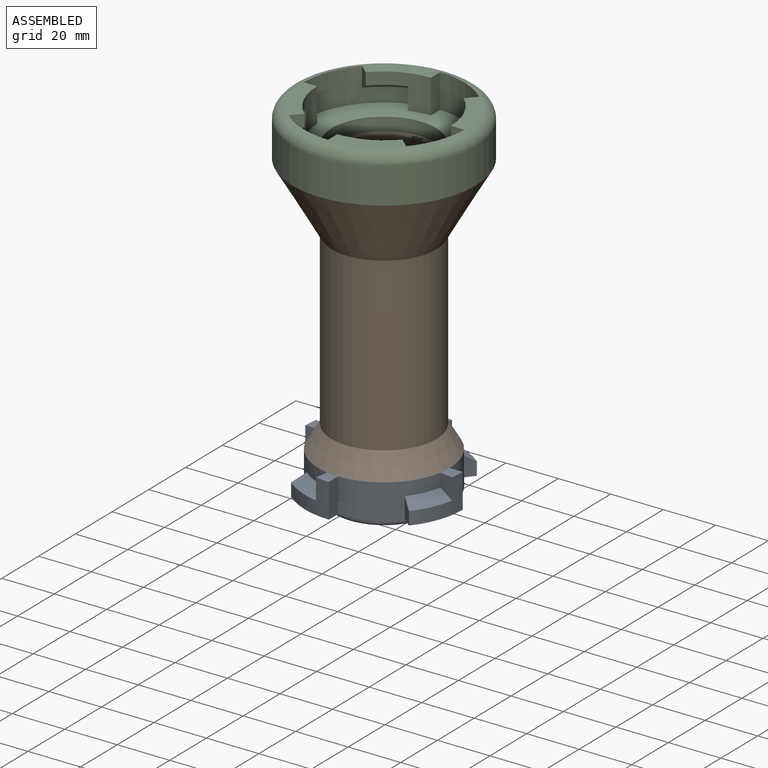
[diagram: assembled view]
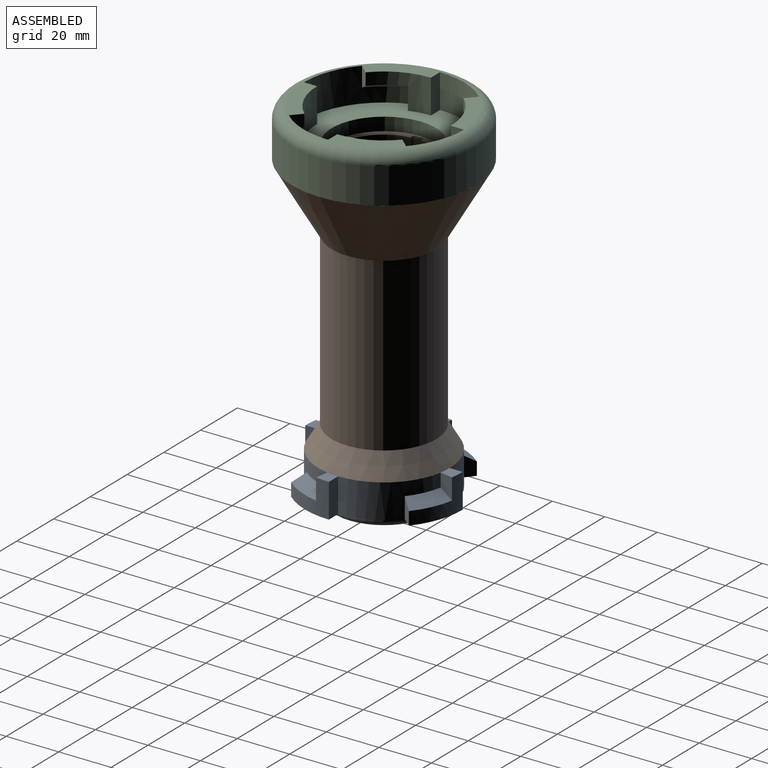
[diagram: assembled view, second angle]
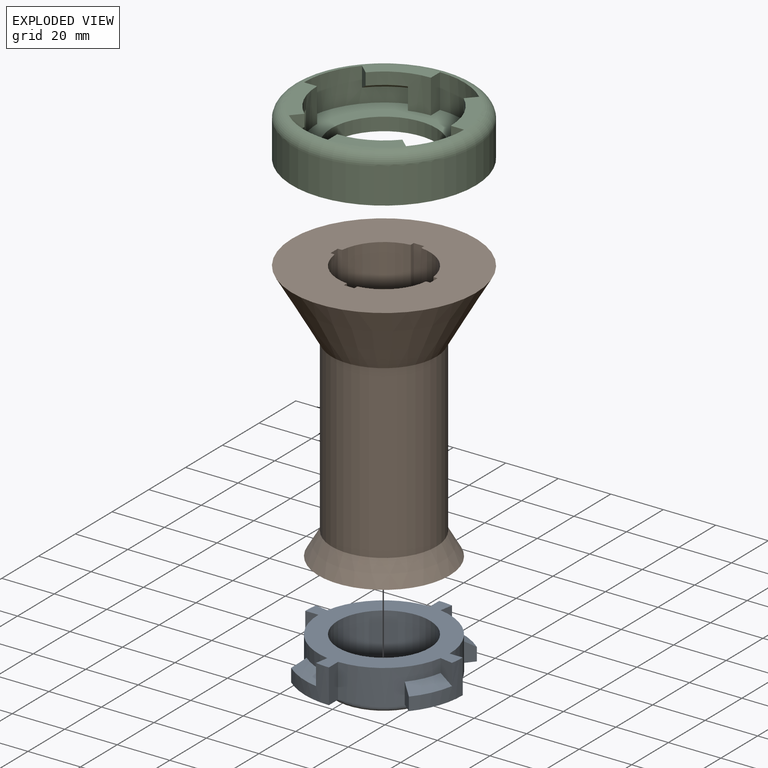
[diagram: exploded view]
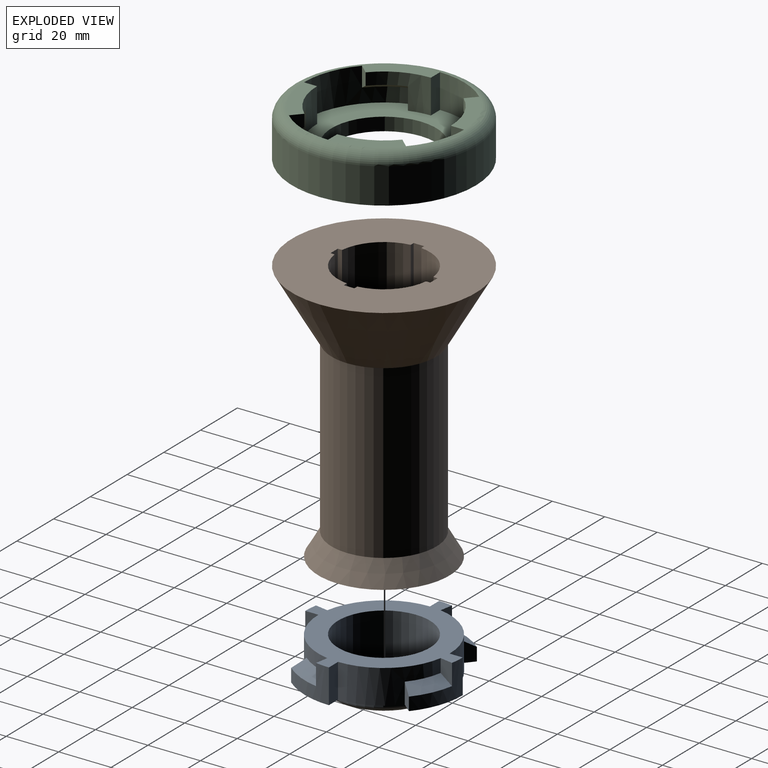
[diagram: exploded view, second angle]
ASSEMBLY  parts=3 mates=2
PART A: 29 faces, bbox 60x60x18 mm
  f0: cylinder r=30mm len=19.28mm, axis (0,0,-1), area 146.6mm2, adj f6,f11,f15,f20,f21,f27
  f1: cylinder r=30mm len=19.28mm, axis (0,0,-1), area 146.6mm2, adj f4,f11,f15,f22,f23,f26
  f2: cylinder r=30mm len=19.28mm, axis (0,0,-1), area 146.6mm2, adj f11,f13,f15,f16,f17,f24
  f3: cylinder r=25mm len=24.62mm, axis (0,0,-1), area 350.5mm2, adj f11,f13,f15,f17,f22,f24
  f4: cone r=30mm half-angle=60deg, axis (0,0,-1), area 83.1mm2, adj f1,f5,f23,f26
  f5: cylinder r=25mm len=24.62mm, axis (0,0,-1), area 350.5mm2, adj f4,f11,f15,f20,f23,f26
  f6: cone r=30mm half-angle=60deg, axis (0,0,-1), area 83.1mm2, adj f0,f8,f21,f27
  f7: cone r=30mm half-angle=60deg, axis (0,0,-1), area 83.1mm2, adj f12,f14,f19,f25
  f8: cylinder r=25mm len=24.62mm, axis (0,0,-1), area 350.5mm2, adj f6,f11,f15,f18,f21,f27
  f9: cylinder r=17.5mm len=35mm, axis (0,0,-1), area 1979.2mm2, adj f15,f28
  f10: cylinder r=19.5mm len=39mm, axis (0,0,-1), area 367.6mm2, adj f11,f28
  f11: plane 60x60mm, normal (0,0,-1), area 1152.9mm2, adj f0,f1,f2,f3,f5,f8,f10,f12
  f12: cylinder r=30mm len=19.28mm, axis (0,0,-1), area 146.6mm2, adj f7,f11,f15,f18,f19,f25
  f13: cone r=30mm half-angle=60deg, axis (0,0,-1), area 83.1mm2, adj f2,f3,f17,f24
  f14: cylinder r=25mm len=24.62mm, axis (0,0,-1), area 350.5mm2, adj f7,f11,f15,f16,f19,f25
  f15: plane 60x60mm, normal (0,0,1), area 1097.4mm2, adj f0,f1,f2,f3,f5,f8,f9,f12
  f16: plane 13x5mm, normal (1,0,0), area 65mm2, adj f2,f11,f14,f15
  f17: plane 8x4.92mm, normal (-0.98,0.17,0), area 32.8mm2, adj f2,f3,f13,f15
  f18: plane 13x5mm, normal (0,1,0), area 65mm2, adj f8,f11,f12,f15
  f19: plane 8x4.92mm, normal (-0.17,-0.98,0), area 32.8mm2, adj f7,f12,f14,f15
  f20: plane 13x5mm, normal (-1,0,0), area 65mm2, adj f0,f5,f11,f15
  f21: plane 8x4.92mm, normal (0.98,-0.17,0), area 32.8mm2, adj f0,f6,f8,f15
  f22: plane 13x5mm, normal (0,-1,0), area 65mm2, adj f1,f3,f11,f15
  f23: plane 8x4.92mm, normal (0.17,0.98,0), area 32.8mm2, adj f1,f4,f5,f15
  f24: plane 7.89x3.83mm, normal (-0.77,0.64,0), area 32.2mm2, adj f2,f3,f11,f13
  f25: plane 7.89x3.83mm, normal (-0.64,-0.77,0), area 32.2mm2, adj f7,f11,f12,f14
  f26: plane 7.89x3.83mm, normal (0.64,0.77,0), area 32.2mm2, adj f1,f4,f5,f11
  f27: plane 7.89x3.83mm, normal (0.77,-0.64,0), area 32.2mm2, adj f0,f6,f8,f11
  f28: torus R=17.5mm, axis (0,0,-1), area 370.6mm2, adj f9,f10
PART B: 21 faces, bbox 70x70x100 mm
  f0: cylinder r=20mm len=65.36mm, axis (0,0,-1), area 8213.3mm2, adj f19,f20
  f1: cylinder r=17.5mm len=100mm, axis (0,0,-1), area 2348mm2, adj f2,f16,f17,f18
  f2: plane 100x1.61mm, normal (1,0,0), area 161.5mm2, adj f1,f3,f17,f18
  f3: plane 100x4mm, normal (0,-1,0), area 400mm2, adj f2,f4,f17,f18
  f4: plane 100x1.61mm, normal (-1,0,0), area 161.5mm2, adj f3,f5,f17,f18
  f5: cylinder r=17.5mm len=100mm, axis (0,0,-1), area 2348mm2, adj f4,f6,f17,f18
  f6: plane 100x1.61mm, normal (0,-1,0), area 161.5mm2, adj f5,f7,f17,f18
  f7: plane 100x4mm, normal (-1,0,0), area 400mm2, adj f6,f8,f17,f18
  f8: plane 100x1.61mm, normal (0,1,0), area 161.5mm2, adj f7,f9,f17,f18
  f9: cylinder r=17.5mm len=100mm, axis (0,0,-1), area 2348mm2, adj f8,f10,f17,f18
  f10: plane 100x1.61mm, normal (-1,0,0), area 161.5mm2, adj f9,f11,f17,f18
  f11: plane 100x4mm, normal (0,1,0), area 400mm2, adj f10,f12,f17,f18
  f12: plane 100x1.61mm, normal (1,0,0), area 161.5mm2, adj f11,f13,f17,f18
  f13: cylinder r=17.5mm len=100mm, axis (0,0,-1), area 2348mm2, adj f12,f14,f17,f18
  f14: plane 100x1.61mm, normal (0,1,0), area 161.5mm2, adj f13,f15,f17,f18
  f15: plane 100x4mm, normal (1,0,0), area 400mm2, adj f14,f16,f17,f18
  f16: plane 100x1.61mm, normal (0,-1,0), area 161.5mm2, adj f1,f15,f17,f18
  f17: plane 70x70mm, normal (0,0,1), area 2861.7mm2, adj f1,f2,f3,f4,f5,f6,f7,f8
  f18: plane 50x50mm, normal (0,0,-1), area 976.8mm2, adj f1,f2,f3,f4,f5,f6,f7,f8
  f19: cone r=20mm half-angle=30deg, axis (0,0,1), area 5183.6mm2, adj f0,f17
  f20: cone r=25mm half-angle=30deg, axis (0,0,-1), area 1413.7mm2, adj f0,f18
PART C: 33 faces, bbox 75.8x75.8x18 mm
  f0: plane 22.67x13.44mm, normal (0,0,1), area 117.3mm2, adj f12,f19,f27,f32
  f1: plane 22.67x13.44mm, normal (0,0,1), area 117.3mm2, adj f11,f22,f28,f32
  f2: plane 22.67x13.44mm, normal (0,0,1), area 117.3mm2, adj f10,f24,f29,f32
  f3: cylinder r=35mm len=70mm, axis (0,0,1), area 2968.8mm2, adj f31,f32
  f4: cone r=30.5mm half-angle=60deg, axis (0,0,-1), area 84.6mm2, adj f10,f13,f23,f29
  f5: cone r=30.5mm half-angle=60deg, axis (0,0,-1), area 84.6mm2, adj f11,f14,f21,f28
  f6: cone r=30.5mm half-angle=60deg, axis (0,0,-1), area 84.6mm2, adj f12,f15,f20,f27
  f7: cone r=30.5mm half-angle=60deg, axis (0,0,-1), area 84.6mm2, adj f9,f16,f25,f30
  f8: plane 22.67x13.44mm, normal (0,0,1), area 117.3mm2, adj f9,f26,f30,f32
  f9: cylinder r=25.5mm len=18.95mm, axis (0,0,1), area 165.7mm2, adj f7,f8,f17,f25,f26,f30
  f10: cylinder r=25.5mm len=18.95mm, axis (0,0,1), area 165.7mm2, adj f2,f4,f17,f23,f24,f29
  f11: cylinder r=25.5mm len=18.95mm, axis (0,0,1), area 165.7mm2, adj f1,f5,f17,f21,f22,f28
  f12: cylinder r=25.5mm len=18.95mm, axis (0,0,1), area 165.7mm2, adj f0,f6,f17,f19,f20,f27
  f13: cylinder r=30.5mm len=29.01mm, axis (0,0,1), area 378.5mm2, adj f4,f17,f23,f26,f29,f32
  f14: cylinder r=30.5mm len=29.01mm, axis (0,0,1), area 378.5mm2, adj f5,f17,f21,f24,f28,f32
  f15: cylinder r=30.5mm len=29.01mm, axis (0,0,1), area 378.5mm2, adj f6,f17,f20,f22,f27,f32
  f16: cylinder r=30.5mm len=29.01mm, axis (0,0,1), area 378.5mm2, adj f7,f17,f19,f25,f30,f32
  f17: plane 61x61mm, normal (0,0,1), area 1489.9mm2, adj f9,f10,f11,f12,f13,f14,f15,f16
  f18: cylinder r=20mm len=40mm, axis (0,0,1), area 628.3mm2, adj f17,f31
  f19: plane 13x5mm, normal (0,-1,0), area 65mm2, adj f0,f12,f16,f17
  f20: plane 8.39x4.76mm, normal (-0.31,0.95,0), area 34.7mm2, adj f6,f12,f15,f17
  f21: plane 8.39x4.76mm, normal (-0.95,-0.31,0), area 34.7mm2, adj f5,f11,f14,f17
  f22: plane 13x5mm, normal (1,0,0), area 65mm2, adj f1,f11,f15,f17
  f23: plane 8.39x4.76mm, normal (0.31,-0.95,0), area 34.7mm2, adj f4,f10,f13,f17
  f24: plane 13x5mm, normal (0,1,0), area 65mm2, adj f2,f10,f14,f17
  f25: plane 8.39x4.76mm, normal (0.95,0.31,0), area 34.7mm2, adj f7,f9,f16,f17
  f26: plane 13x5mm, normal (-1,0,0), area 65mm2, adj f8,f9,f13,f17
  f27: plane 7.5x3.72mm, normal (-0.74,0.67,0), area 30.3mm2, adj f0,f6,f12,f15
  f28: plane 7.5x3.72mm, normal (-0.67,-0.74,0), area 30.3mm2, adj f1,f5,f11,f14
  f29: plane 7.5x3.72mm, normal (0.74,-0.67,0), area 30.3mm2, adj f2,f4,f10,f13
  f30: plane 7.5x3.72mm, normal (0.67,0.74,0), area 30.3mm2, adj f7,f8,f9,f16
  f31: plane 70x70mm, normal (0,0,-1), area 2591.8mm2, adj f3,f18
  f32: torus R=30.5mm, axis (0,0,1), area 1481.8mm2, adj f0,f1,f2,f3,f8,f13,f14,f15
PLACE A t=(6.64,-1.41,-1.5)mm fixed
PLACE B t=(6.64,-1.41,16.5)mm
PLACE C rot(axis=(0,0,1),180deg) t=(6.64,-1.41,114.5)mm
MATE fastened C.f3 <-> B.f5  axis (0,0,-1) through (6.64,-1.41,116.5)mm
MATE fastened A.f0 <-> B.f19  axis (0,0,1) through (6.64,-1.41,16.5)mm
